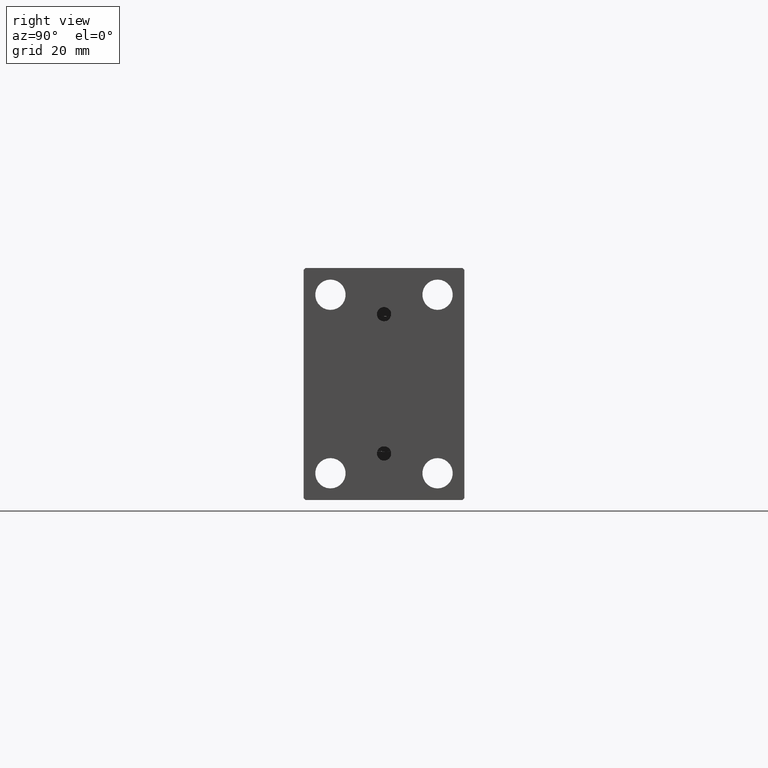
[diagram: clean part render]
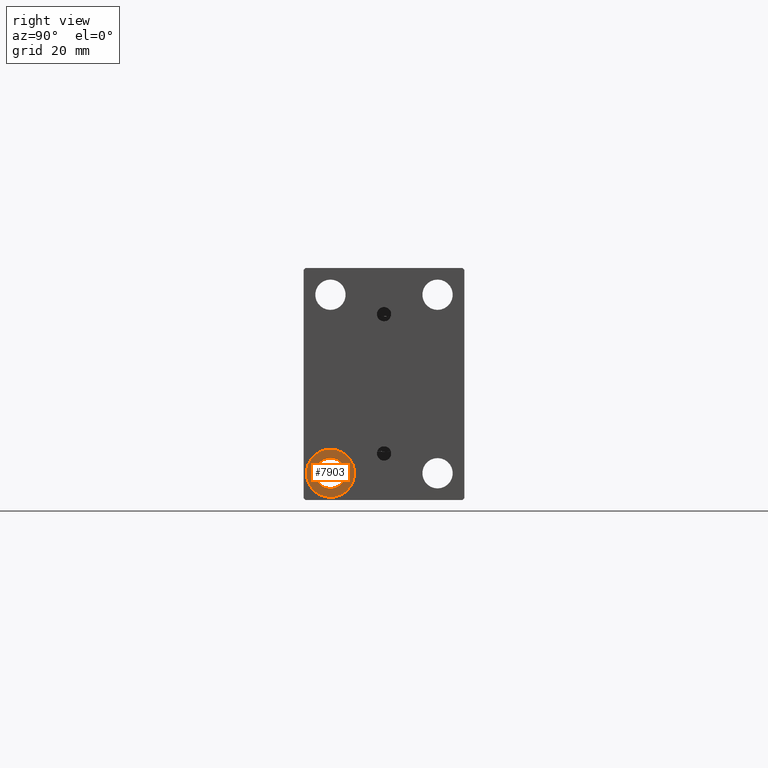
[diagram: same view with one face highlighted and labeled with its STEP entity id]
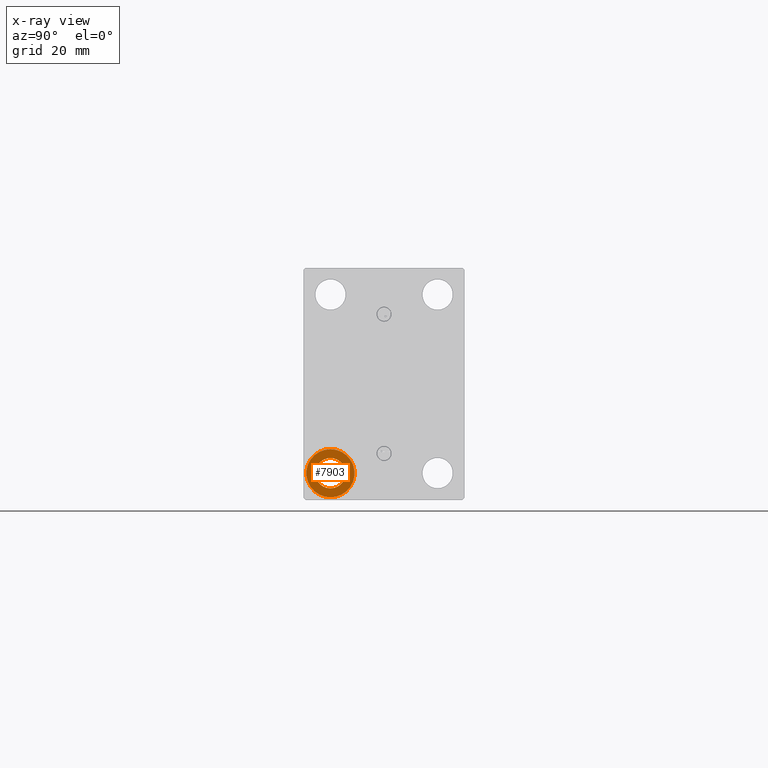
[diagram: x-ray of the same camera — body ghosted, the highlighted face saturated]
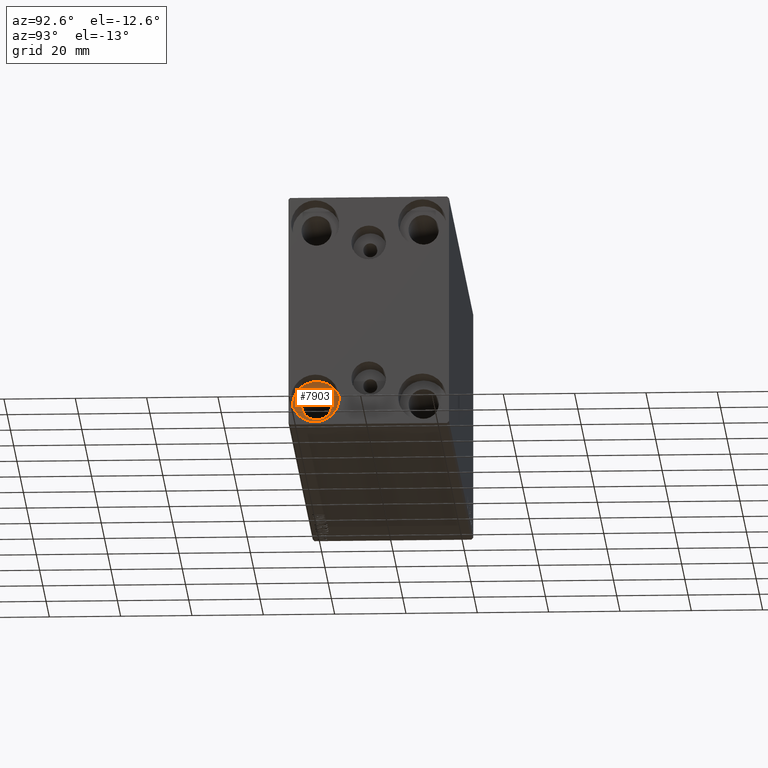
[diagram: same view with one face highlighted and labeled with its STEP entity id]
A machine part, right view. The second image highlights one B-rep face of the part: STEP entity #7903.
The next image is the same camera in x-ray: the body ghosted, the highlighted face saturated — about 0% of this face is hidden behind the body in this view.
A second angle (auxiliary view) of the same face is appended — the face is thin or edge-on in the first view.
In plain terms, the highlighted planar face has unit normal (1, 0, 0).
Its self-contained STEP definition (entity closure, byte-faithful):
#2699 = DIRECTION ( 'NONE',  ( -1.000000000000000000, -0.000000000000000000, -0.000000000000000000 ) ) ;
#3646 = DIRECTION ( 'NONE',  ( -1.000000000000000000, -0.000000000000000000, -0.000000000000000000 ) ) ;
#5049 = EDGE_CURVE ( 'NONE', #6791, #31263, #27806, .T. ) ;
#5811 = CIRCLE ( 'NONE', #31481, 6.749999999999999112 ) ;
#6791 = VERTEX_POINT ( 'NONE', #18944 ) ;
#7781 = DIRECTION ( 'NONE',  ( 0.000000000000000000, 0.000000000000000000, -1.000000000000000000 ) ) ;
#7903 = ADVANCED_FACE ( 'NONE', ( #14104, #17547 ), #38471, .T. ) ;
#8976 = CARTESIAN_POINT ( 'NONE',  ( 141.0000000000000000, -15.00000000000000355, -25.00000000000000000 ) ) ;
#9751 = CARTESIAN_POINT ( 'NONE',  ( 141.0000000000000000, -15.00000000000000355, -20.75000000000000355 ) ) ;
#9971 = DIRECTION ( 'NONE',  ( 1.000000000000000000, 0.000000000000000000, -0.000000000000000000 ) ) ;
#10992 = CARTESIAN_POINT ( 'NONE',  ( 141.0000000000000000, -15.00000000000000355, -25.00000000000000000 ) ) ;
#11235 = EDGE_LOOP ( 'NONE', ( #32793, #35043 ) ) ;
#11433 = CARTESIAN_POINT ( 'NONE',  ( 141.0000000000000000, -15.00000000000000355, -29.25000000000000000 ) ) ;
#12370 = AXIS2_PLACEMENT_3D ( 'NONE', #8976, #44153, #12658 ) ;
#12658 = DIRECTION ( 'NONE',  ( 0.000000000000000000, 0.000000000000000000, 1.000000000000000000 ) ) ;
#14104 = FACE_OUTER_BOUND ( 'NONE', #41607, .T. ) ;
#14497 = EDGE_CURVE ( 'NONE', #23405, #26011, #27844, .T. ) ;
#17547 = FACE_BOUND ( 'NONE', #11235, .T. ) ;
#18372 = CIRCLE ( 'NONE', #36015, 4.249999999999996447 ) ;
#18944 = CARTESIAN_POINT ( 'NONE',  ( 141.0000000000000000, -15.00000000000000355, -18.25000000000000355 ) ) ;
#21003 = CARTESIAN_POINT ( 'NONE',  ( 141.0000000000000000, 0.000000000000000000, 0.000000000000000000 ) ) ;
#22962 = CARTESIAN_POINT ( 'NONE',  ( 141.0000000000000000, -15.00000000000000355, -25.00000000000000000 ) ) ;
#23405 = VERTEX_POINT ( 'NONE', #11433 ) ;
#25650 = AXIS2_PLACEMENT_3D ( 'NONE', #10992, #3646, #7781 ) ;
#26011 = VERTEX_POINT ( 'NONE', #9751 ) ;
#26639 = DIRECTION ( 'NONE',  ( -1.000000000000000000, -0.000000000000000000, -0.000000000000000000 ) ) ;
#27517 = DIRECTION ( 'NONE',  ( 0.000000000000000000, 0.000000000000000000, 1.000000000000000000 ) ) ;
#27806 = CIRCLE ( 'NONE', #12370, 6.749999999999999112 ) ;
#27844 = CIRCLE ( 'NONE', #25650, 4.249999999999996447 ) ;
#28538 = AXIS2_PLACEMENT_3D ( 'NONE', #21003, #9971, #42381 ) ;
#31263 = VERTEX_POINT ( 'NONE', #44899 ) ;
#31481 = AXIS2_PLACEMENT_3D ( 'NONE', #34404, #2699, #27517 ) ;
#32793 = ORIENTED_EDGE ( 'NONE', *, *, #43717, .T. ) ;
#34404 = CARTESIAN_POINT ( 'NONE',  ( 141.0000000000000000, -15.00000000000000355, -25.00000000000000000 ) ) ;
#35043 = ORIENTED_EDGE ( 'NONE', *, *, #14497, .T. ) ;
#36015 = AXIS2_PLACEMENT_3D ( 'NONE', #22962, #26639, #40188 ) ;
#38471 = PLANE ( 'NONE',  #28538 ) ;
#39930 = EDGE_CURVE ( 'NONE', #31263, #6791, #5811, .T. ) ;
#40188 = DIRECTION ( 'NONE',  ( 0.000000000000000000, 0.000000000000000000, -1.000000000000000000 ) ) ;
#40814 = ORIENTED_EDGE ( 'NONE', *, *, #5049, .F. ) ;
#41262 = ORIENTED_EDGE ( 'NONE', *, *, #39930, .F. ) ;
#41607 = EDGE_LOOP ( 'NONE', ( #41262, #40814 ) ) ;
#42381 = DIRECTION ( 'NONE',  ( 0.000000000000000000, 0.000000000000000000, 1.000000000000000000 ) ) ;
#43717 = EDGE_CURVE ( 'NONE', #26011, #23405, #18372, .T. ) ;
#44153 = DIRECTION ( 'NONE',  ( -1.000000000000000000, -0.000000000000000000, -0.000000000000000000 ) ) ;
#44899 = CARTESIAN_POINT ( 'NONE',  ( 141.0000000000000000, -15.00000000000000355, -31.75000000000000000 ) ) ;